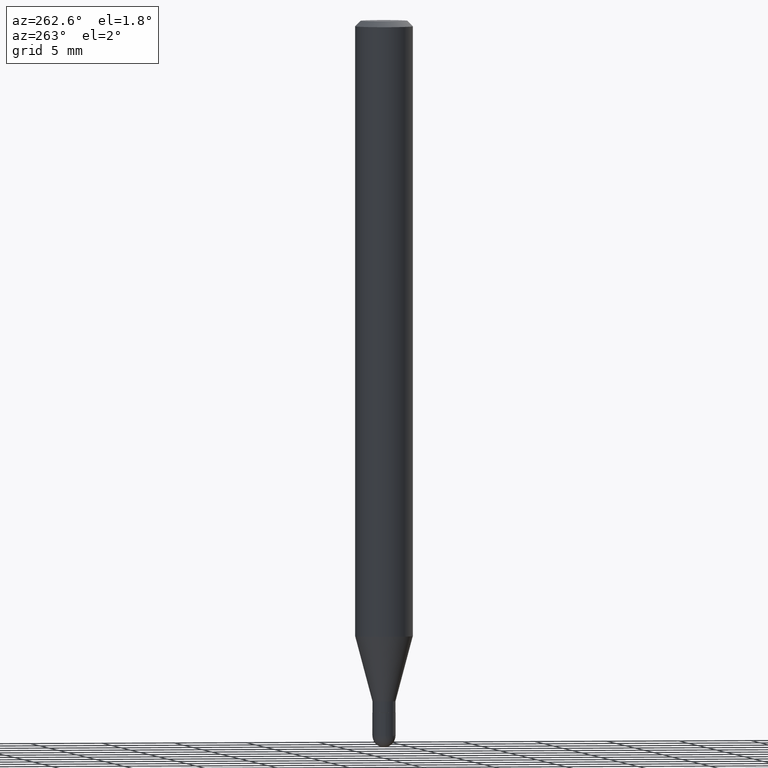
[diagram: clean part render]
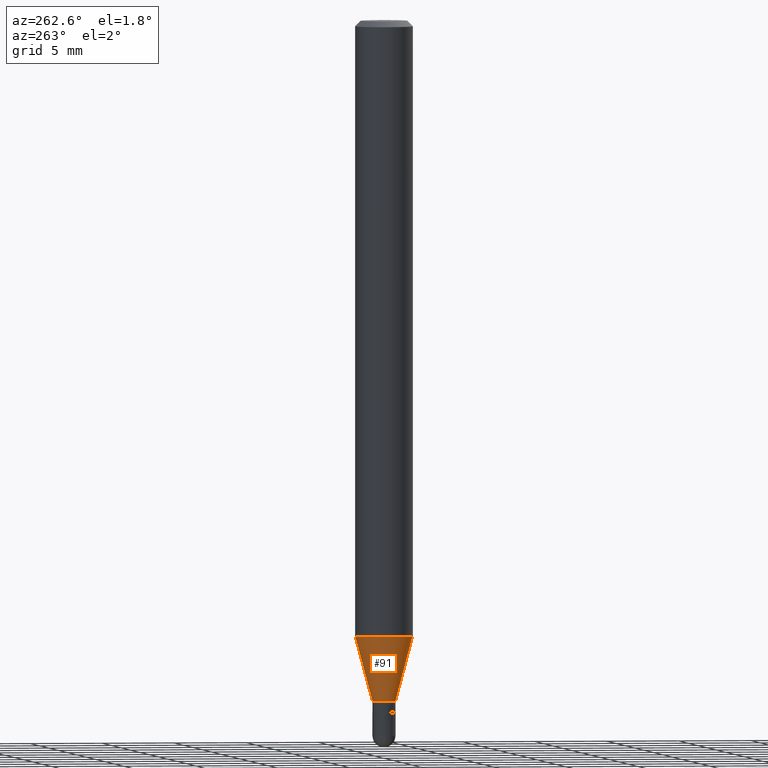
[diagram: same view with one face highlighted and labeled with its STEP entity id]
A machine part, auxiliary view. The second image highlights one B-rep face of the part: STEP entity #91.
In plain terms, the highlighted conical surface has half-angle 15 deg.
Its self-contained STEP definition (entity closure, byte-faithful):
#10 = VERTEX_POINT ( 'NONE', #45 ) ;
#27 = DIRECTION ( 'NONE',  ( -6.982962677686264344E-15, -1.000000000000000000, 3.469013325287953293E-15 ) ) ;
#33 = CARTESIAN_POINT ( 'NONE',  ( 3.916866830877977794E-16, 0.03149999999999348460, -1.843500000000000139 ) ) ;
#36 = DIRECTION ( 'NONE',  ( -6.982962677686265922E-15, -1.000000000000000000, 0.000000000000000000 ) ) ;
#37 = DIRECTION ( 'NONE',  ( -6.982962677686265922E-15, -1.000000000000000000, 0.000000000000000000 ) ) ;
#45 = CARTESIAN_POINT ( 'NONE',  ( -2.199633243470717816E-16, -0.03150000000000636319, -1.843500000000000139 ) ) ;
#50 = EDGE_CURVE ( 'NONE', #10, #229, #167, .T. ) ;
#60 = DIRECTION ( 'NONE',  ( 1.839019923739601104E-15, 0.2588190451025250693, 0.9659258262890670910 ) ) ;
#62 = CIRCLE ( 'NONE', #397, 0.03149999999999992389 ) ;
#68 = FACE_OUTER_BOUND ( 'NONE', #506, .T. ) ;
#91 = ADVANCED_FACE ( 'NONE', ( #68 ), #418, .T. ) ;
#109 = EDGE_CURVE ( 'NONE', #308, #229, #370, .T. ) ;
#136 = CARTESIAN_POINT ( 'NONE',  ( 2.238209617644760322E-16, 0.03149999999999348460, -1.843500000000000139 ) ) ;
#159 = ORIENTED_EDGE ( 'NONE', *, *, #50, .T. ) ;
#163 = CARTESIAN_POINT ( 'NONE',  ( 4.508247670440634638E-29, -6.436508720308413428E-15, -1.843500000000000139 ) ) ;
#167 = LINE ( 'NONE', #329, #216 ) ;
#170 = ORIENTED_EDGE ( 'NONE', *, *, #109, .F. ) ;
#183 = CARTESIAN_POINT ( 'NONE',  ( -5.499083108677528180E-16, -0.07875000000000582923, -1.667160599342370819 ) ) ;
#189 = AXIS2_PLACEMENT_3D ( 'NONE', #385, #262, #27 ) ;
#216 = VECTOR ( 'NONE', #486, 39.37007874015748143 ) ;
#229 = VERTEX_POINT ( 'NONE', #183 ) ;
#236 = DIRECTION ( 'NONE',  ( -2.445482869780653605E-29, 3.491461198973915131E-15, 1.000000000000000000 ) ) ;
#243 = DIRECTION ( 'NONE',  ( -2.445482869780653605E-29, 3.491461198973915131E-15, 1.000000000000000000 ) ) ;
#250 = LINE ( 'NONE', #136, #428 ) ;
#262 = DIRECTION ( 'NONE',  ( -2.445482869780653605E-29, 3.491461198973915131E-15, 1.000000000000000000 ) ) ;
#308 = VERTEX_POINT ( 'NONE', #321 ) ;
#320 = ORIENTED_EDGE ( 'NONE', *, *, #410, .T. ) ;
#321 = CARTESIAN_POINT ( 'NONE',  ( 5.595524044111192308E-16, 0.07874999999999415801, -1.667160599342371263 ) ) ;
#329 = CARTESIAN_POINT ( 'NONE',  ( -2.199633243470717816E-16, -0.03150000000000636319, -1.843500000000000139 ) ) ;
#370 = CIRCLE ( 'NONE', #189, 0.07875000000000000056 ) ;
#383 = ORIENTED_EDGE ( 'NONE', *, *, #475, .F. ) ;
#385 = CARTESIAN_POINT ( 'NONE',  ( 4.077012686865015865E-29, -5.820826545061986514E-15, -1.667160599342371041 ) ) ;
#397 = AXIS2_PLACEMENT_3D ( 'NONE', #163, #243, #36 ) ;
#406 = AXIS2_PLACEMENT_3D ( 'NONE', #432, #236, #37 ) ;
#410 = EDGE_CURVE ( 'NONE', #424, #10, #62, .T. ) ;
#418 = CONICAL_SURFACE ( 'NONE', #406, 0.03149999999999992389, 0.2617993877991502960 ) ;
#424 = VERTEX_POINT ( 'NONE', #33 ) ;
#428 = VECTOR ( 'NONE', #60, 39.37007874015748143 ) ;
#432 = CARTESIAN_POINT ( 'NONE',  ( 4.508247670440634638E-29, -6.436508720308413428E-15, -1.843500000000000139 ) ) ;
#475 = EDGE_CURVE ( 'NONE', #424, #308, #250, .T. ) ;
#486 = DIRECTION ( 'NONE',  ( -1.807323732225330928E-15, -0.2588190451025182970, 0.9659258262890689783 ) ) ;
#506 = EDGE_LOOP ( 'NONE', ( #383, #320, #159, #170 ) ) ;